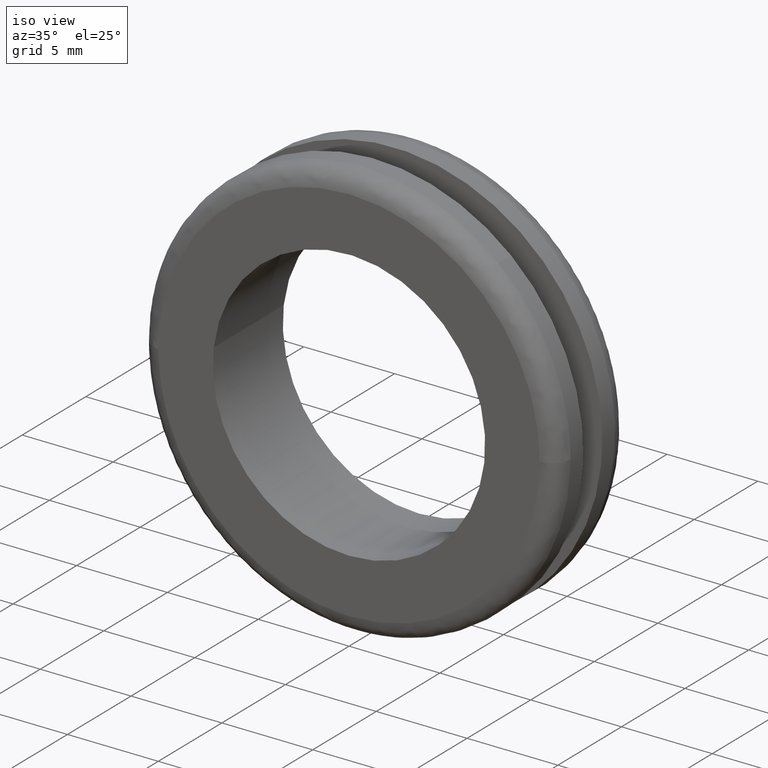
[diagram: clean part render]
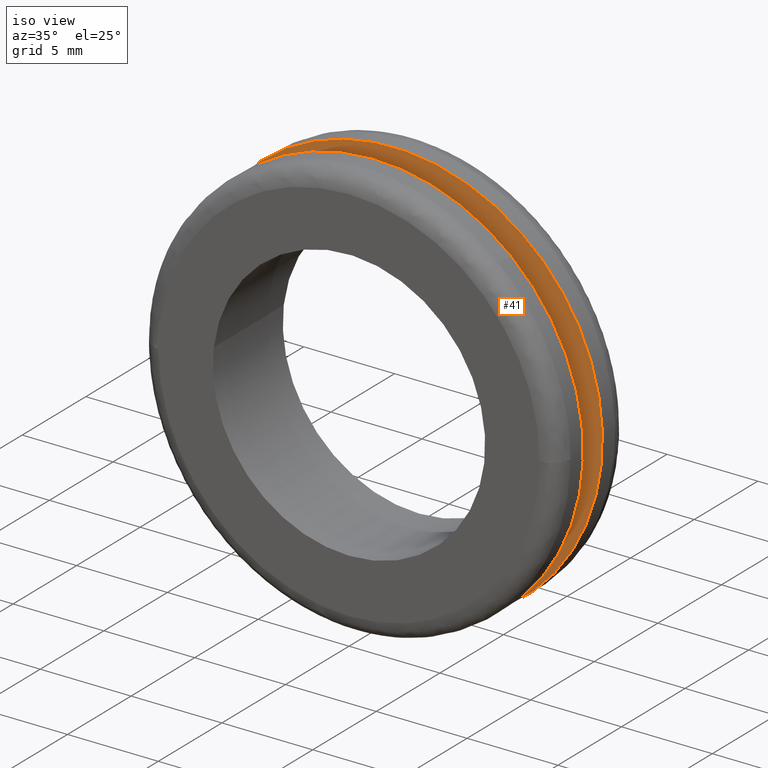
[diagram: same view with one face highlighted and labeled with its STEP entity id]
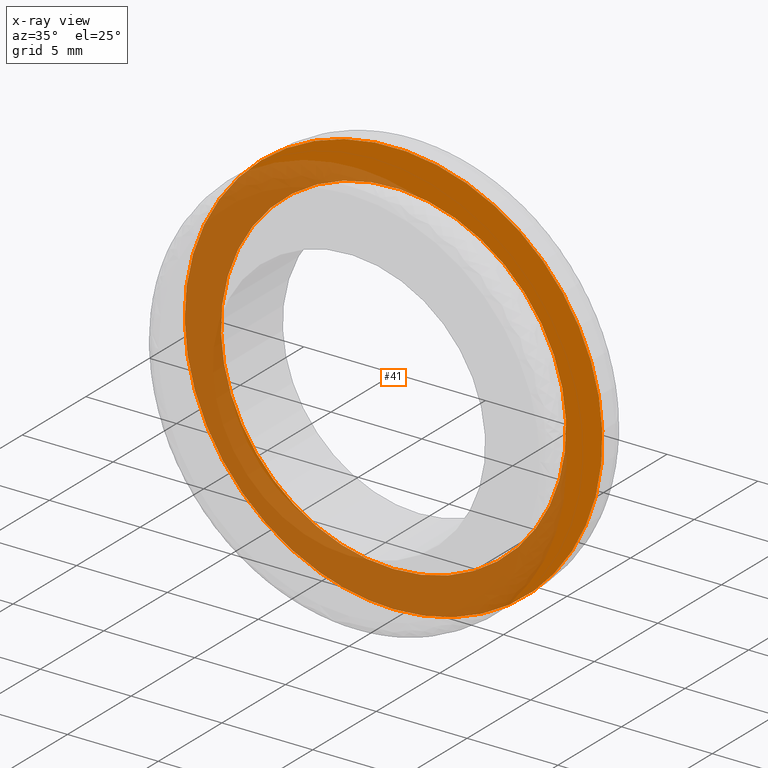
[diagram: x-ray of the same camera — body ghosted, the highlighted face saturated]
A machine part, iso view. The second image highlights one B-rep face of the part: STEP entity #41.
The next image is the same camera in x-ray: the body ghosted, the highlighted face saturated — about 59% of this face is hidden behind the body in this view.
In plain terms, the highlighted planar face has unit normal (0, 1, 0).
Its self-contained STEP definition (entity closure, byte-faithful):
#41=ADVANCED_FACE('',(#68,#69),#67,.F.);
#67=PLANE('',#229);
#68=FACE_OUTER_BOUND('',#230,.T.);
#69=FACE_BOUND('',#231,.T.);
#226=CARTESIAN_POINT('',(-2.39023011444E+001,3.50000000000E+000,-1.49499999999E+001));
#227=DIRECTION('',(0.00000000000E+000,1.00000000000E+000,0.00000000000E+000));
#228=DIRECTION('',(0.00000000000E+000,0.00000000000E+000,1.00000000000E+000));
#229=AXIS2_PLACEMENT_3D('',#226,#227,#228);
#230=EDGE_LOOP('',(#394,#395,#396));
#231=EDGE_LOOP('',(#397,#398,#399));
#394=ORIENTED_EDGE('',*,*,#492,.T.);
#395=ORIENTED_EDGE('',*,*,#493,.T.);
#396=ORIENTED_EDGE('',*,*,#494,.T.);
#397=ORIENTED_EDGE('',*,*,#495,.F.);
#398=ORIENTED_EDGE('',*,*,#496,.F.);
#399=ORIENTED_EDGE('',*,*,#497,.F.);
#492=EDGE_CURVE('',#577,#578,#579,.T.);
#493=EDGE_CURVE('',#578,#585,#586,.T.);
#494=EDGE_CURVE('',#585,#577,#592,.T.);
#495=EDGE_CURVE('',#598,#599,#600,.T.);
#496=EDGE_CURVE('',#606,#598,#607,.T.);
#497=EDGE_CURVE('',#599,#606,#613,.T.);
#577=VERTEX_POINT('',#896);
#578=VERTEX_POINT('',#897);
#579=CIRCLE('',#901,1.15000000000E+001);
#585=VERTEX_POINT('',#902);
#586=CIRCLE('',#906,1.15000000000E+001);
#592=CIRCLE('',#910,1.15000000000E+001);
#598=VERTEX_POINT('',#911);
#599=VERTEX_POINT('',#912);
#600=CIRCLE('',#916,9.50000000000E+000);
#606=VERTEX_POINT('',#917);
#607=CIRCLE('',#921,9.50000000000E+000);
#613=CIRCLE('',#925,9.50000000000E+000);
#896=CARTESIAN_POINT('',(-4.88498130835E-015,3.50000000000E+000,-1.14999999999E+001));
#897=CARTESIAN_POINT('',(4.04292059643E+000,3.50000000000E+000,1.07659088353E+001));
#898=CARTESIAN_POINT('',(1.21236354289E-013,3.50000000000E+000,3.22444293488E-011));
#899=DIRECTION('',(-1.04640404970E-016,-1.00000000000E+000,-8.44485333748E-017));
#900=DIRECTION('',(-1.06026298852E-014,8.44485333748E-017,-1.00000000000E+000));
#901=AXIS2_PLACEMENT_3D('',#898,#899,#900);
#902=CARTESIAN_POINT('',(-4.04360670881E+000,3.50000000000E+000,-1.07656511546E+001));
#903=CARTESIAN_POINT('',(1.21236354289E-013,3.50000000000E+000,3.22444293488E-011));
#904=DIRECTION('',(-1.04640404970E-016,-1.00000000000E+000,-8.44485333748E-017));
#905=DIRECTION('',(-1.06026298852E-014,8.44485333748E-017,-1.00000000000E+000));
#906=AXIS2_PLACEMENT_3D('',#903,#904,#905);
#907=CARTESIAN_POINT('',(1.21236354289E-013,3.50000000000E+000,3.22444293488E-011));
#908=DIRECTION('',(-1.04640404970E-016,-1.00000000000E+000,-8.44485333748E-017));
#909=DIRECTION('',(-1.06026298852E-014,8.44485333748E-017,-1.00000000000E+000));
#910=AXIS2_PLACEMENT_3D('',#907,#908,#909);
#911=CARTESIAN_POINT('',(-9.43359050867E+000,3.50000000000E+000,1.12132516010E+000));
#912=CARTESIAN_POINT('',(-2.22044604925E-015,3.50000000000E+000,-9.50000000000E+000));
#913=CARTESIAN_POINT('',(7.01660951563E-014,3.50000000000E+000,1.50102152929E-013));
#914=DIRECTION('',(-1.36554849265E-017,-1.00000000000E+000,-1.14882290180E-016));
#915=DIRECTION('',(-7.23032744787E-015,1.14882290180E-016,-1.00000000000E+000));
#916=AXIS2_PLACEMENT_3D('',#913,#914,#915);
#917=CARTESIAN_POINT('',(9.43339655492E+000,3.50000000000E+000,-1.12295567035E+000));
#918=CARTESIAN_POINT('',(7.01660951563E-014,3.50000000000E+000,1.50102152929E-013));
#919=DIRECTION('',(-1.36554849265E-017,-1.00000000000E+000,-1.14882290180E-016));
#920=DIRECTION('',(-7.23032744787E-015,1.14882290180E-016,-1.00000000000E+000));
#921=AXIS2_PLACEMENT_3D('',#918,#919,#920);
#922=CARTESIAN_POINT('',(7.01660951563E-014,3.50000000000E+000,1.50102152929E-013));
#923=DIRECTION('',(-1.36554849265E-017,-1.00000000000E+000,-1.14882290180E-016));
#924=DIRECTION('',(-7.23032744787E-015,1.14882290180E-016,-1.00000000000E+000));
#925=AXIS2_PLACEMENT_3D('',#922,#923,#924);